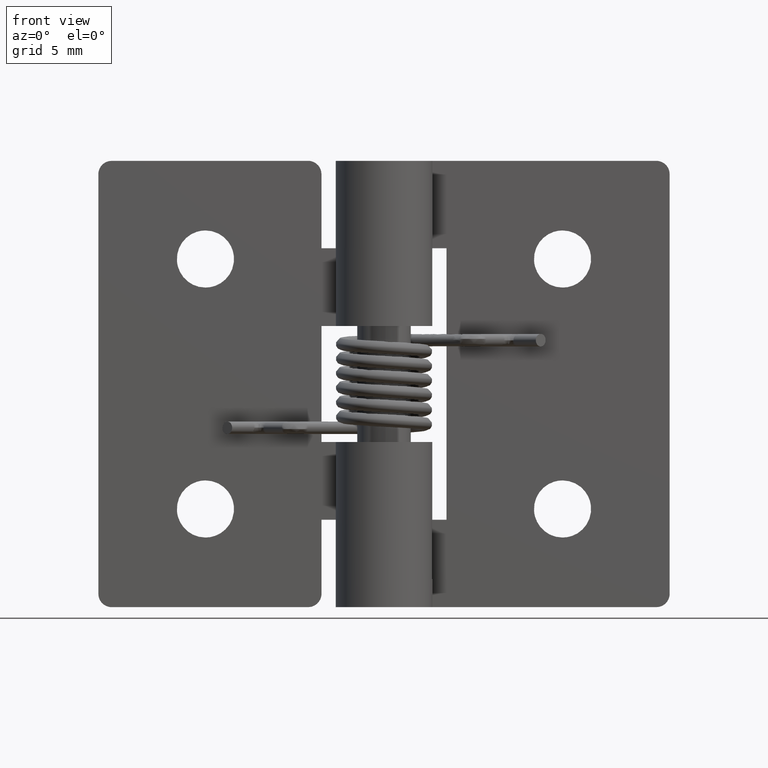
[diagram: clean part render]
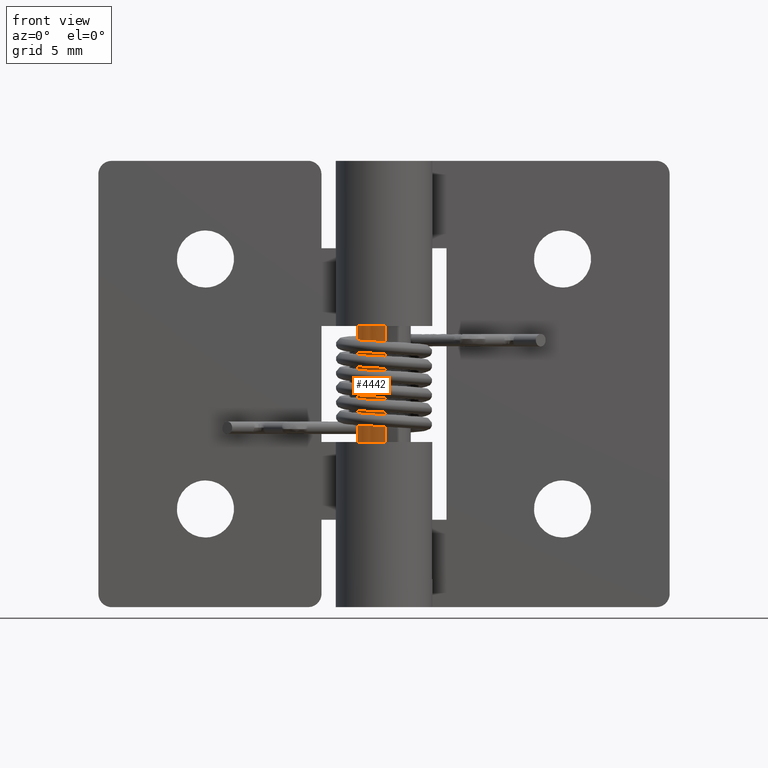
[diagram: same view with one face highlighted and labeled with its STEP entity id]
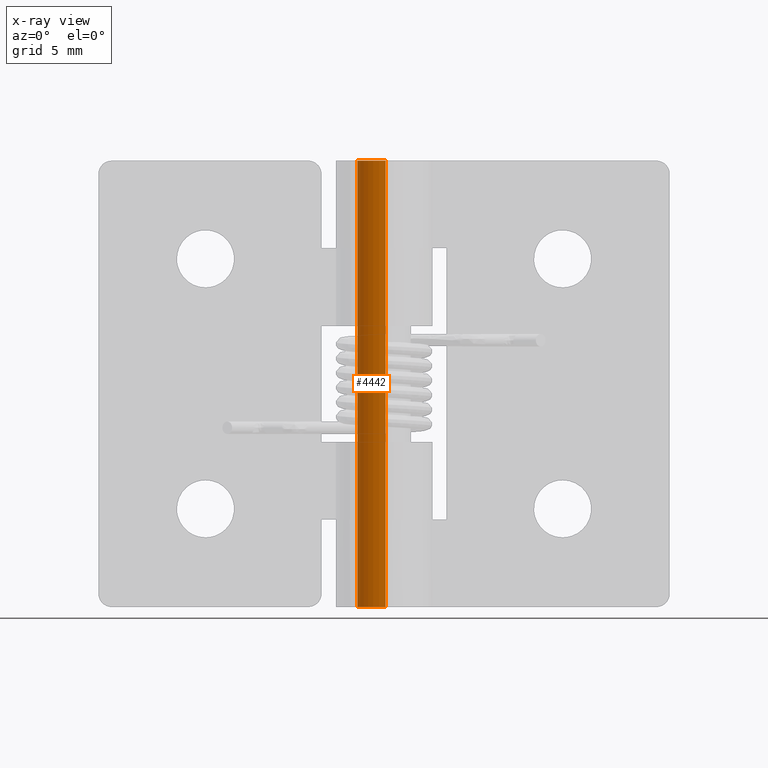
[diagram: x-ray of the same camera — body ghosted, the highlighted face saturated]
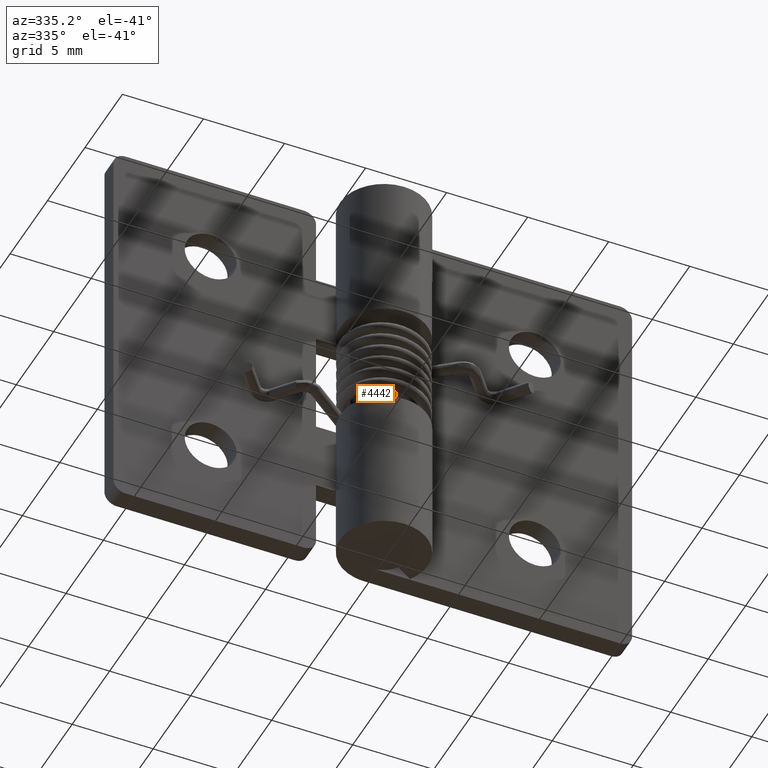
[diagram: same view with one face highlighted and labeled with its STEP entity id]
A machine part, front view. The second image highlights one B-rep face of the part: STEP entity #4442.
The next image is the same camera in x-ray: the body ghosted, the highlighted face saturated — about 0% of this face is hidden behind the body in this view.
A second angle (auxiliary view) of the same face is appended — the face is thin or edge-on in the first view.
In plain terms, the highlighted face is a freeform B-spline surface patch.
Its self-contained STEP definition (entity closure, byte-faithful):
#4279=CARTESIAN_POINT('',(-0.177051352010473,1.489514289542488,-1.419714E-015));
#4280=VERTEX_POINT('',#4279);
#4298=CARTESIAN_POINT('',(-0.177051352010474,1.489514289542488,24.999984999999999));
#4299=VERTEX_POINT('',#4298);
#4300=CARTESIAN_POINT('',(-0.177051352010474,1.489514289542488,24.999984999999999));
#4301=CARTESIAN_POINT('',(-0.177051352010473,1.489514289542488,-1.419714E-015));
#4302=QUASI_UNIFORM_CURVE('',1,(#4300,#4301),.UNSPECIFIED.,.F.,.U.);
#4303=EDGE_CURVE('',#4299,#4280,#4302,.T.);
#4322=CARTESIAN_POINT('',(0.091572809386774,-1.497202197627633,24.999984999999999));
#4323=VERTEX_POINT('',#4322);
#4337=CARTESIAN_POINT('',(0.091572809386774,-1.497202197627633,-1.387779E-015));
#4338=VERTEX_POINT('',#4337);
#4339=CARTESIAN_POINT('',(0.091572809386774,-1.497202197627633,24.999984999999999));
#4340=CARTESIAN_POINT('',(0.091572809386774,-1.497202197627633,-1.387779E-015));
#4341=QUASI_UNIFORM_CURVE('',1,(#4339,#4340),.UNSPECIFIED.,.F.,.U.);
#4342=EDGE_CURVE('',#4323,#4338,#4341,.T.);
#4360=CARTESIAN_POINT('',(0.091572809302285,-1.497202197632800,25.624984625000000));
#4361=CARTESIAN_POINT('',(-1.405629388330515,-1.588775006935085,25.624984625000000));
#4362=CARTESIAN_POINT('',(-1.497202197632800,-0.091572809302285,25.624984625000000));
#4363=CARTESIAN_POINT('',(-1.583679295098791,1.322315236259252,25.624984625000000));
#4364=CARTESIAN_POINT('',(-0.177051351985138,1.489514289545500,25.624984625000003));
#4365=CARTESIAN_POINT('',(0.091572809302285,-1.497202197632800,-0.640624615625001));
#4366=CARTESIAN_POINT('',(-1.405629388330515,-1.588775006935085,-0.640624615625001));
#4367=CARTESIAN_POINT('',(-1.497202197632800,-0.091572809302285,-0.640624615625001));
#4368=CARTESIAN_POINT('',(-1.583679295098791,1.322315236259252,-0.640624615625001));
#4369=CARTESIAN_POINT('',(-0.177051351985138,1.489514289545500,-0.640624615625001));
#4377=(BOUNDED_SURFACE()B_SPLINE_SURFACE(2,1,((#4360,#4365),(#4361,#4366),(#4362,#4367),(#4363,#4368),(#4364,#4369)),.UNSPECIFIED.,.F.,.F.,.U.)B_SPLINE_SURFACE_WITH_KNOTS((3,2,3),(2,2),(0.0,1.570796326794897,3.078760800517997),(0.0,26.265609240625011),.UNSPECIFIED.)GEOMETRIC_REPRESENTATION_ITEM()RATIONAL_B_SPLINE_SURFACE(((1.0,1.0),(0.707106781186548,0.707106781186548),(1.0,1.0),(0.718822509939086,0.718822509939086),(0.977505800795127,0.977505800795127)))REPRESENTATION_ITEM('')SURFACE());
#4378=CARTESIAN_POINT('',(-1.500000000000000,0.0,0.0));
#4379=VERTEX_POINT('',#4378);
#4380=CARTESIAN_POINT('',(-1.500000000000000,0.0,0.0));
#4381=CARTESIAN_POINT('',(-1.500000000000000,1.332261788881411,0.0));
#4382=CARTESIAN_POINT('',(-0.177051352010473,1.489514289542488,-1.419714E-015));
#4390=(BOUNDED_CURVE()B_SPLINE_CURVE(2,(#4380,#4381,#4382),.UNSPECIFIED.,.F.,.U.)B_SPLINE_CURVE_WITH_KNOTS((3,3),(0.0,0.229562473509895),.UNSPECIFIED.)CURVE()GEOMETRIC_REPRESENTATION_ITEM()RATIONAL_B_SPLINE_CURVE((1.0,0.731050832859636,0.956026754176617))REPRESENTATION_ITEM(''));
#4391=EDGE_CURVE('',#4379,#4280,#4390,.T.);
#4392=ORIENTED_EDGE('',*,*,#4391,.F.);
#4393=CARTESIAN_POINT('',(0.091572809386774,-1.497202197627633,-1.387779E-015));
#4394=CARTESIAN_POINT('',(0.045829145032609,-1.500000000000000,0.0));
#4395=CARTESIAN_POINT('',(0.0,-1.500000000000000,0.0));
#4396=CARTESIAN_POINT('',(-1.500000000000000,-1.500000000000000,0.0));
#4397=CARTESIAN_POINT('',(-1.500000000000000,0.0,0.0));
#4405=(BOUNDED_CURVE()B_SPLINE_CURVE(2,(#4393,#4394,#4395,#4396,#4397),.UNSPECIFIED.,.F.,.U.)B_SPLINE_CURVE_WITH_KNOTS((3,2,3),(0.739332962222494,0.750000000000000,1.0),.UNSPECIFIED.)CURVE()GEOMETRIC_REPRESENTATION_ITEM()RATIONAL_B_SPLINE_CURVE((0.976072041631465,0.987502787880567,1.0,0.707106781186548,1.0))REPRESENTATION_ITEM(''));
#4406=EDGE_CURVE('',#4338,#4379,#4405,.T.);
#4407=ORIENTED_EDGE('',*,*,#4406,.F.);
#4408=ORIENTED_EDGE('',*,*,#4342,.F.);
#4409=CARTESIAN_POINT('',(-1.500000000000000,0.0,24.999984999999999));
#4410=VERTEX_POINT('',#4409);
#4411=CARTESIAN_POINT('',(0.091572809386774,-1.497202197627633,24.999984999999999));
#4412=CARTESIAN_POINT('',(0.045829145032609,-1.500000000000000,24.999984999999999));
#4413=CARTESIAN_POINT('',(0.0,-1.500000000000000,24.999984999999999));
#4414=CARTESIAN_POINT('',(-1.500000000000000,-1.500000000000000,24.999984999999995));
#4415=CARTESIAN_POINT('',(-1.500000000000000,0.0,24.999984999999999));
#4423=(BOUNDED_CURVE()B_SPLINE_CURVE(2,(#4411,#4412,#4413,#4414,#4415),.UNSPECIFIED.,.F.,.U.)B_SPLINE_CURVE_WITH_KNOTS((3,2,3),(0.739332962222494,0.750000000000000,1.0),.UNSPECIFIED.)CURVE()GEOMETRIC_REPRESENTATION_ITEM()RATIONAL_B_SPLINE_CURVE((0.976072041631465,0.987502787880567,1.0,0.707106781186548,1.0))REPRESENTATION_ITEM(''));
#4424=EDGE_CURVE('',#4323,#4410,#4423,.T.);
#4425=ORIENTED_EDGE('',*,*,#4424,.T.);
#4426=CARTESIAN_POINT('',(-1.500000000000000,0.0,24.999984999999999));
#4427=CARTESIAN_POINT('',(-1.500000000000000,1.332261788881411,24.999984999999999));
#4428=CARTESIAN_POINT('',(-0.177051352010474,1.489514289542488,24.999984999999999));
#4436=(BOUNDED_CURVE()B_SPLINE_CURVE(2,(#4426,#4427,#4428),.UNSPECIFIED.,.F.,.U.)B_SPLINE_CURVE_WITH_KNOTS((3,3),(0.0,0.229562473509895),.UNSPECIFIED.)CURVE()GEOMETRIC_REPRESENTATION_ITEM()RATIONAL_B_SPLINE_CURVE((1.0,0.731050832859636,0.956026754176617))REPRESENTATION_ITEM(''));
#4437=EDGE_CURVE('',#4410,#4299,#4436,.T.);
#4438=ORIENTED_EDGE('',*,*,#4437,.T.);
#4439=ORIENTED_EDGE('',*,*,#4303,.T.);
#4440=EDGE_LOOP('',(#4392,#4407,#4408,#4425,#4438,#4439));
#4441=FACE_OUTER_BOUND('',#4440,.T.);
#4442=ADVANCED_FACE('',(#4441),#4377,.T.);